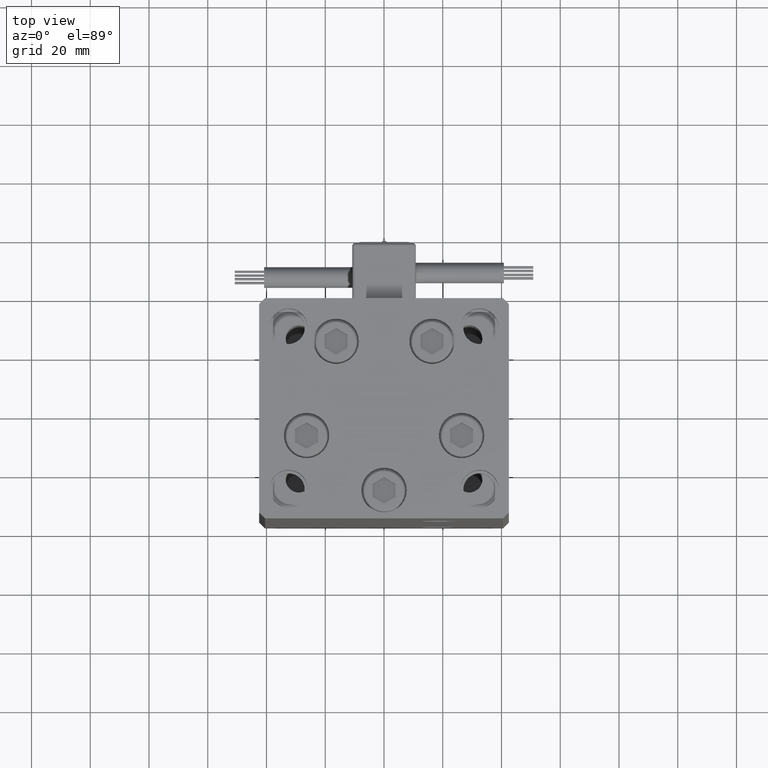
[diagram: clean part render]
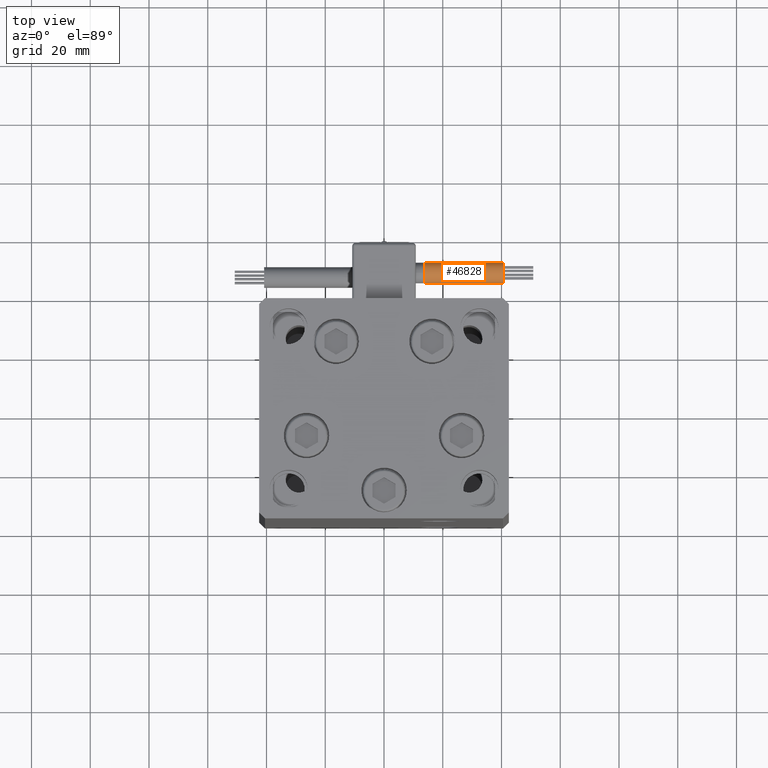
[diagram: same view with one face highlighted and labeled with its STEP entity id]
A machine part, top view. The second image highlights one B-rep face of the part: STEP entity #46828.
In plain terms, the highlighted cylindrical surface (edge-blend (fillet) strip) has radius 3.5 mm, axis along (1, -0, 0).
Its self-contained STEP definition (entity closure, byte-faithful):
#144 = ORIENTED_EDGE ( 'NONE', *, *, #36068, .T. ) ;
#863 = DIRECTION ( 'NONE',  ( 1.000000000000000000, -2.599999999999999847E-16, 2.220446049250000002E-16 ) ) ;
#3137 = DIRECTION ( 'NONE',  ( 0.000000000000000000, 0.000000000000000000, -1.000000000000000000 ) ) ;
#3746 = FACE_OUTER_BOUND ( 'NONE', #27979, .T. ) ;
#4762 = CIRCLE ( 'NONE', #7312, 3.500000000000003109 ) ;
#4789 = EDGE_CURVE ( 'NONE', #49091, #33680, #19535, .T. ) ;
#7312 = AXIS2_PLACEMENT_3D ( 'NONE', #11628, #44141, #15370 ) ;
#9912 = LINE ( 'NONE', #49881, #50827 ) ;
#11628 = CARTESIAN_POINT ( 'NONE',  ( 40.80000000000000426, 42.00000000000000000, -65.00000000000000000 ) ) ;
#13585 = CARTESIAN_POINT ( 'NONE',  ( 13.79999999999999893, 42.00000000000000000, -65.00000000000000000 ) ) ;
#14448 = AXIS2_PLACEMENT_3D ( 'NONE', #47086, #35890, #3137 ) ;
#15087 = ORIENTED_EDGE ( 'NONE', *, *, #28623, .F. ) ;
#15370 = DIRECTION ( 'NONE',  ( 0.000000000000000000, 0.000000000000000000, -1.000000000000000000 ) ) ;
#15620 = VERTEX_POINT ( 'NONE', #31037 ) ;
#17088 = DIRECTION ( 'NONE',  ( 0.000000000000000000, 0.000000000000000000, -1.000000000000000000 ) ) ;
#18079 = AXIS2_PLACEMENT_3D ( 'NONE', #18132, #46374, #17088 ) ;
#18132 = CARTESIAN_POINT ( 'NONE',  ( 13.79999999999999893, 42.00000000000000000, -65.00000000000000000 ) ) ;
#19535 = LINE ( 'NONE', #52017, #39764 ) ;
#24212 = CARTESIAN_POINT ( 'NONE',  ( 40.80000000000000426, 45.50000000000000711, -65.00000000000000000 ) ) ;
#26846 = VERTEX_POINT ( 'NONE', #33810 ) ;
#27265 = DIRECTION ( 'NONE',  ( 1.000000000000000000, -2.599999999999999847E-16, 2.220446049250000002E-16 ) ) ;
#27902 = CARTESIAN_POINT ( 'NONE',  ( 13.79999999999999893, 38.50000000000000000, -65.00000000000000000 ) ) ;
#27979 = EDGE_LOOP ( 'NONE', ( #15087, #144, #35044, #43316, #48111 ) ) ;
#28623 = EDGE_CURVE ( 'NONE', #26846, #39040, #9912, .T. ) ;
#28940 = CIRCLE ( 'NONE', #14448, 3.500000000000003109 ) ;
#31037 = CARTESIAN_POINT ( 'NONE',  ( 13.79999999999999893, 41.99999999999999289, -61.50000000000000000 ) ) ;
#32247 = CYLINDRICAL_SURFACE ( 'NONE', #51454, 3.500000000000003109 ) ;
#33680 = VERTEX_POINT ( 'NONE', #39087 ) ;
#33810 = CARTESIAN_POINT ( 'NONE',  ( 13.79999999999999893, 45.50000000000000711, -65.00000000000000000 ) ) ;
#35044 = ORIENTED_EDGE ( 'NONE', *, *, #40445, .T. ) ;
#35890 = DIRECTION ( 'NONE',  ( 1.000000000000000000, 0.000000000000000000, 2.220446049250000002E-16 ) ) ;
#36068 = EDGE_CURVE ( 'NONE', #26846, #15620, #28940, .T. ) ;
#37557 = DIRECTION ( 'NONE',  ( -4.956352788505158337E-16, -1.000000000000000000, 0.000000000000000000 ) ) ;
#39040 = VERTEX_POINT ( 'NONE', #24212 ) ;
#39087 = CARTESIAN_POINT ( 'NONE',  ( 40.80000000000000426, 38.50000000000000000, -65.00000000000000000 ) ) ;
#39764 = VECTOR ( 'NONE', #27265, 1000.000000000000000 ) ;
#40445 = EDGE_CURVE ( 'NONE', #15620, #49091, #42769, .T. ) ;
#42769 = CIRCLE ( 'NONE', #18079, 3.500000000000003109 ) ;
#43316 = ORIENTED_EDGE ( 'NONE', *, *, #4789, .T. ) ;
#44141 = DIRECTION ( 'NONE',  ( 1.000000000000000000, 0.000000000000000000, 2.220446049250000002E-16 ) ) ;
#46084 = DIRECTION ( 'NONE',  ( 1.000000000000000000, -2.599999999999999847E-16, 2.220446049250000002E-16 ) ) ;
#46374 = DIRECTION ( 'NONE',  ( 1.000000000000000000, 0.000000000000000000, 2.220446049250000002E-16 ) ) ;
#46828 = ADVANCED_FACE ( 'NONE', ( #3746 ), #32247, .T. ) ;
#47086 = CARTESIAN_POINT ( 'NONE',  ( 13.79999999999999893, 42.00000000000000000, -65.00000000000000000 ) ) ;
#48088 = EDGE_CURVE ( 'NONE', #39040, #33680, #4762, .T. ) ;
#48111 = ORIENTED_EDGE ( 'NONE', *, *, #48088, .F. ) ;
#49091 = VERTEX_POINT ( 'NONE', #27902 ) ;
#49881 = CARTESIAN_POINT ( 'NONE',  ( 13.80000000000000071, 45.50000000000000711, -65.00000000000000000 ) ) ;
#50827 = VECTOR ( 'NONE', #863, 1000.000000000000000 ) ;
#51454 = AXIS2_PLACEMENT_3D ( 'NONE', #13585, #46084, #37557 ) ;
#52017 = CARTESIAN_POINT ( 'NONE',  ( 13.79999999999999716, 38.50000000000000000, -65.00000000000000000 ) ) ;